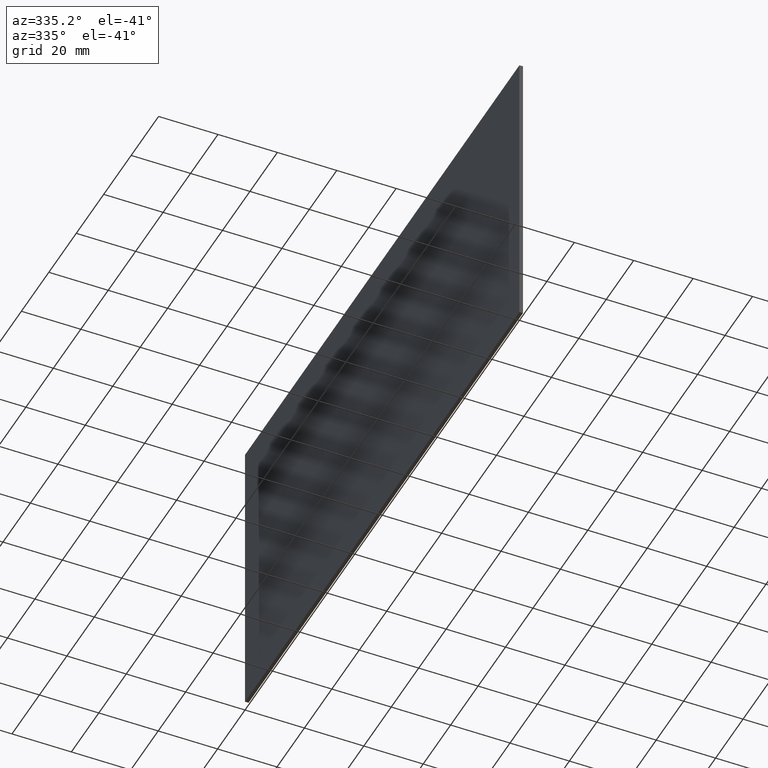
[diagram: clean part render]
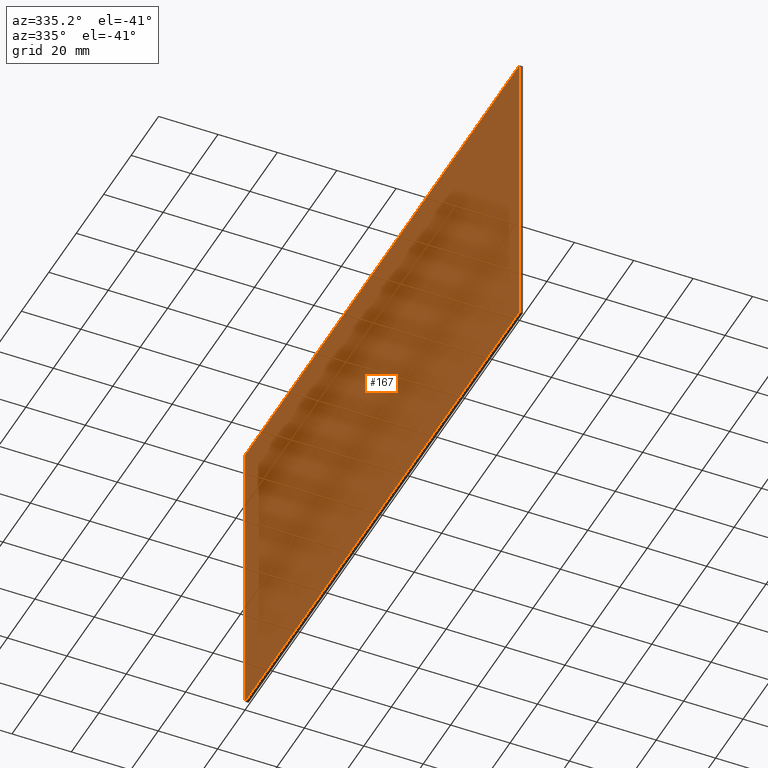
[diagram: same view with one face highlighted and labeled with its STEP entity id]
A machine part, auxiliary view. The second image highlights one B-rep face of the part: STEP entity #167.
In plain terms, the highlighted face is a freeform B-spline surface patch.
Its self-contained STEP definition (entity closure, byte-faithful):
#51=CARTESIAN_POINT('',(0.0,0.0,100.0));
#52=VERTEX_POINT('',#51);
#58=CARTESIAN_POINT('',(0.0,0.0,0.0));
#59=VERTEX_POINT('',#58);
#60=CARTESIAN_POINT('',(0.0,0.0,100.0));
#61=CARTESIAN_POINT('',(0.0,0.0,0.0));
#62=QUASI_UNIFORM_CURVE('',1,(#60,#61),.UNSPECIFIED.,.F.,.U.);
#63=EDGE_CURVE('',#52,#59,#62,.T.);
#87=CARTESIAN_POINT('',(0.0,200.0,100.0));
#88=VERTEX_POINT('',#87);
#101=CARTESIAN_POINT('',(0.0,200.0,0.0));
#102=VERTEX_POINT('',#101);
#108=CARTESIAN_POINT('',(0.0,200.0,100.0));
#109=CARTESIAN_POINT('',(0.0,200.0,0.0));
#110=QUASI_UNIFORM_CURVE('',1,(#108,#109),.UNSPECIFIED.,.F.,.U.);
#111=EDGE_CURVE('',#88,#102,#110,.T.);
#142=CARTESIAN_POINT('',(0.0,200.0,0.0));
#143=CARTESIAN_POINT('',(0.0,0.0,0.0));
#144=QUASI_UNIFORM_CURVE('',1,(#142,#143),.UNSPECIFIED.,.F.,.U.);
#145=EDGE_CURVE('',#102,#59,#144,.T.);
#152=CARTESIAN_POINT('',(0.0,-9.989999612361194,-4.994999806180604));
#153=CARTESIAN_POINT('',(0.0,-9.989999612361194,104.995002488389600));
#154=CARTESIAN_POINT('',(0.0,209.990004976779200,-4.994999806180604));
#155=CARTESIAN_POINT('',(0.0,209.990004976779200,104.995002488389600));
#156=B_SPLINE_SURFACE_WITH_KNOTS('',1,1,((#152,#154),(#153,#155)),.UNSPECIFIED.,.F.,.F.,.U.,(2,2),(2,2),(0.0,109.990002294570200),(0.0,219.980004589140410),.UNSPECIFIED.);
#157=ORIENTED_EDGE('',*,*,#63,.F.);
#158=CARTESIAN_POINT('',(0.0,200.0,100.0));
#159=CARTESIAN_POINT('',(0.0,0.0,100.0));
#160=QUASI_UNIFORM_CURVE('',1,(#158,#159),.UNSPECIFIED.,.F.,.U.);
#161=EDGE_CURVE('',#88,#52,#160,.T.);
#162=ORIENTED_EDGE('',*,*,#161,.F.);
#163=ORIENTED_EDGE('',*,*,#111,.T.);
#164=ORIENTED_EDGE('',*,*,#145,.T.);
#165=EDGE_LOOP('',(#157,#162,#163,#164));
#166=FACE_OUTER_BOUND('',#165,.T.);
#167=ADVANCED_FACE('',(#166),#156,.T.);